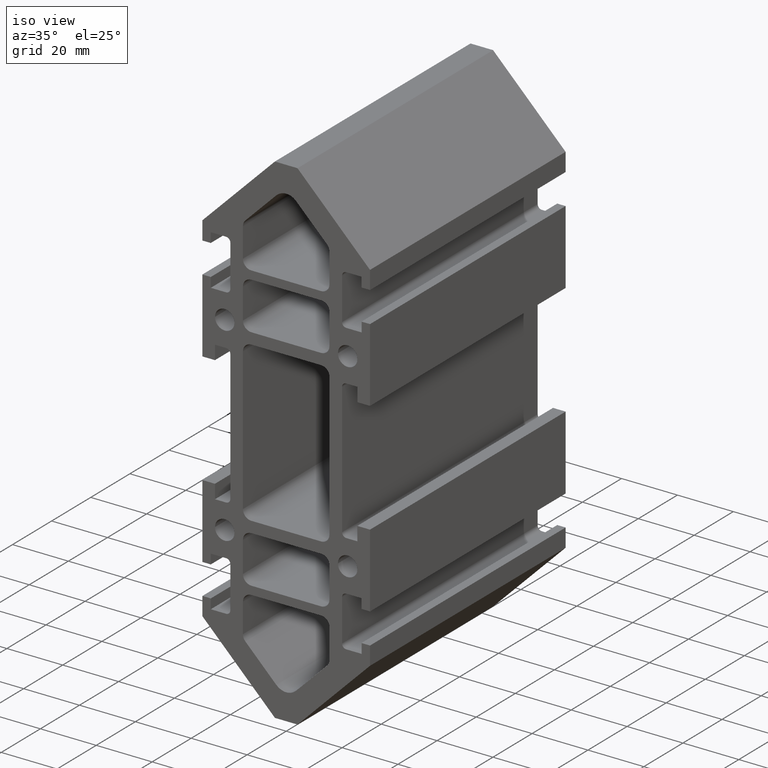
[diagram: clean part render]
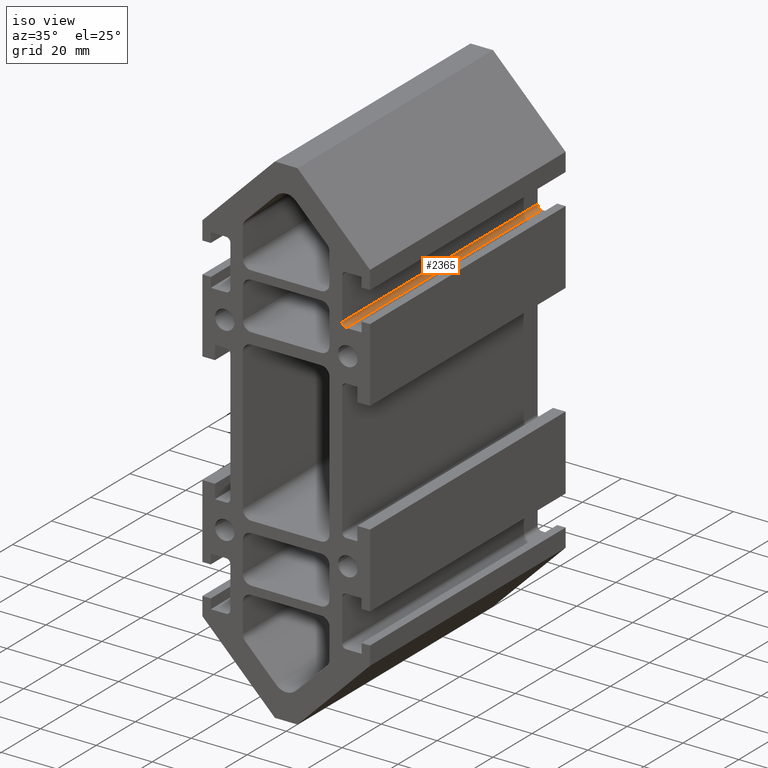
[diagram: same view with one face highlighted and labeled with its STEP entity id]
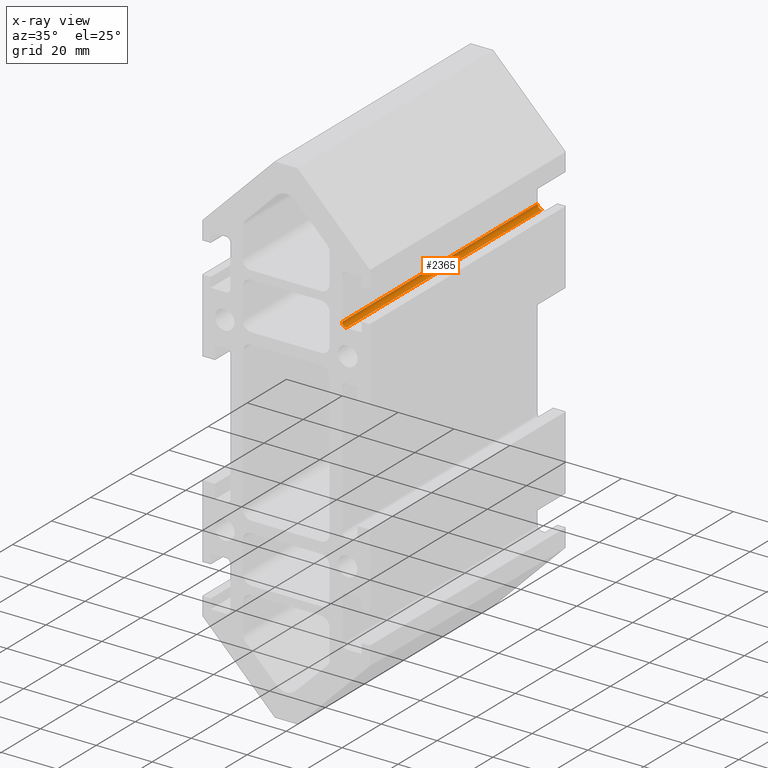
[diagram: x-ray of the same camera — body ghosted, the highlighted face saturated]
A machine part, iso view. The second image highlights one B-rep face of the part: STEP entity #2365.
The next image is the same camera in x-ray: the body ghosted, the highlighted face saturated — about 0% of this face is hidden behind the body in this view.
In plain terms, the highlighted cylindrical surface (edge-blend (fillet) strip) has radius 1.5 mm, axis along (0, 1, 0).
Its self-contained STEP definition (entity closure, byte-faithful):
#177=FACE_OUTER_BOUND('',#295,.T.);
#295=EDGE_LOOP('',(#1823,#1824,#1825,#1826));
#517=LINE('',#3700,#789);
#518=LINE('',#3703,#790);
#789=VECTOR('',#3012,10.);
#790=VECTOR('',#3015,10.);
#957=CIRCLE('',#2553,1.5);
#958=CIRCLE('',#2554,1.5);
#1123=VERTEX_POINT('',#3696);
#1124=VERTEX_POINT('',#3697);
#1125=VERTEX_POINT('',#3699);
#1126=VERTEX_POINT('',#3701);
#1415=EDGE_CURVE('',#1123,#1124,#957,.T.);
#1416=EDGE_CURVE('',#1124,#1125,#517,.T.);
#1417=EDGE_CURVE('',#1125,#1126,#958,.T.);
#1418=EDGE_CURVE('',#1126,#1123,#518,.T.);
#1823=ORIENTED_EDGE('',*,*,#1415,.T.);
#1824=ORIENTED_EDGE('',*,*,#1416,.T.);
#1825=ORIENTED_EDGE('',*,*,#1417,.T.);
#1826=ORIENTED_EDGE('',*,*,#1418,.T.);
#2286=CYLINDRICAL_SURFACE('',#2552,1.5);
#2365=ADVANCED_FACE('',(#177),#2286,.F.);
#2552=AXIS2_PLACEMENT_3D('',#3695,#3008,#3009);
#2553=AXIS2_PLACEMENT_3D('',#3698,#3010,#3011);
#2554=AXIS2_PLACEMENT_3D('',#3702,#3013,#3014);
#3008=DIRECTION('center_axis',(0.,1.,0.));
#3009=DIRECTION('ref_axis',(-0.707106781186545,0.,-0.70710678118655));
#3010=DIRECTION('center_axis',(0.,-1.,0.));
#3011=DIRECTION('ref_axis',(-0.707106781186545,0.,-0.70710678118655));
#3012=DIRECTION('',(0.,1.,0.));
#3013=DIRECTION('center_axis',(0.,1.,0.));
#3014=DIRECTION('ref_axis',(-0.707106781186545,0.,-0.70710678118655));
#3015=DIRECTION('',(0.,-1.,0.));
#3695=CARTESIAN_POINT('Origin',(21.5,0.,44.5));
#3696=CARTESIAN_POINT('',(20.,0.,44.5));
#3697=CARTESIAN_POINT('',(21.5,0.,43.));
#3698=CARTESIAN_POINT('Origin',(21.5,0.,44.5));
#3699=CARTESIAN_POINT('',(21.5,100.,43.));
#3700=CARTESIAN_POINT('',(21.5,0.,43.));
#3701=CARTESIAN_POINT('',(20.,100.,44.5));
#3702=CARTESIAN_POINT('Origin',(21.5,100.,44.5));
#3703=CARTESIAN_POINT('',(20.,0.,44.5));